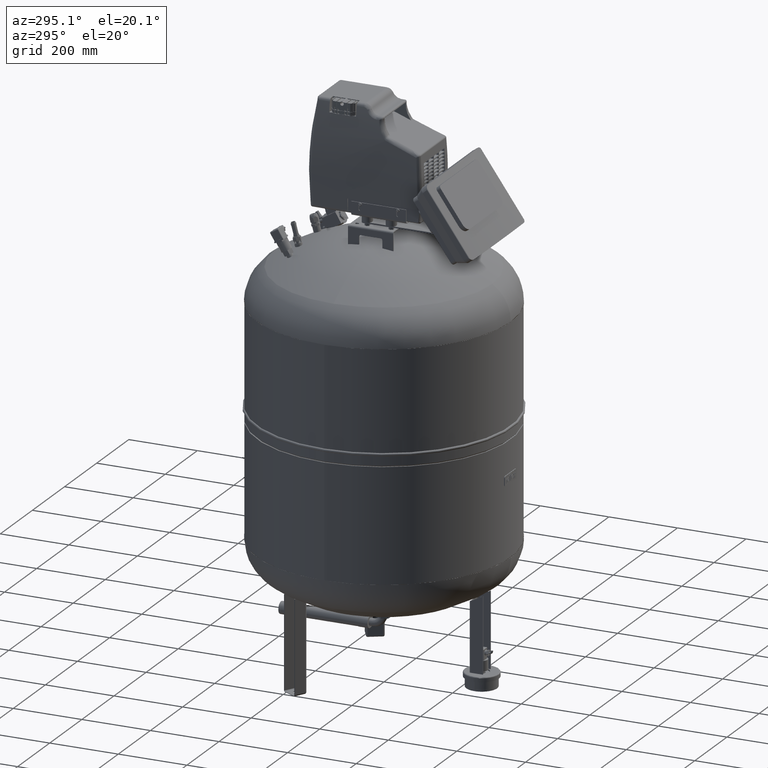
[diagram: clean part render]
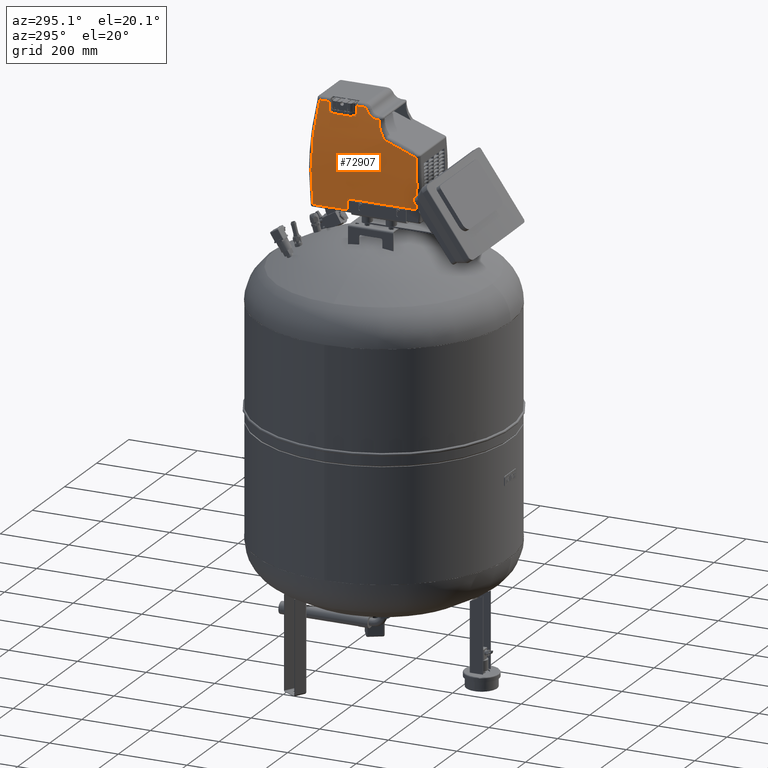
[diagram: same view with one face highlighted and labeled with its STEP entity id]
A machine part, auxiliary view. The second image highlights one B-rep face of the part: STEP entity #72907.
In plain terms, the highlighted cylindrical surface (partial cylindrical patch) has radius 1323.98 mm, axis along (-0, -1, 0).
Its self-contained STEP definition (entity closure, byte-faithful):
#72464=CARTESIAN_POINT('',(-88.601441545151005,64.994999999999919,1348.9999999999768));
#72465=VERTEX_POINT('',#72464);
#72466=CARTESIAN_POINT('',(-88.601441545151431,-136.8903313762531,1348.9999999999768));
#72467=VERTEX_POINT('',#72466);
#72468=CARTESIAN_POINT('',(-88.60144154515099,64.994999999999919,1348.9999999999768));
#72469=DIRECTION('',(0.0,-1.0,0.0));
#72470=VECTOR('',#72469,201.88533137625302);
#72471=LINE('',#72468,#72470);
#72472=EDGE_CURVE('',#72465,#72467,#72471,.T.);
#72567=CARTESIAN_POINT('',(-86.691151156861679,64.994999999999919,1316.2934525354474));
#72568=VERTEX_POINT('',#72567);
#72569=CARTESIAN_POINT('',(1233.9793513775155,64.994999999999692,1409.8388779159684));
#72570=DIRECTION('',(1.791997E-016,1.0,-2.838878E-017));
#72571=DIRECTION('',(0.987682942333179,-1.814344E-016,-0.156468544519573));
#72572=AXIS2_PLACEMENT_3D('',#72569,#72570,#72571);
#72573=CIRCLE('',#72572,1323.9793513775155);
#72574=EDGE_CURVE('',#72568,#72465,#72573,.T.);
#72717=CARTESIAN_POINT('',(1233.9793513775155,15.999999999999687,1409.8388779159684));
#72718=DIRECTION('',(-1.836970E-016,-1.0,0.0));
#72719=DIRECTION('',(0.987682942333179,-1.814344E-016,-0.156468544519573));
#72720=AXIS2_PLACEMENT_3D('',#72717,#72718,#72719);
#72721=CYLINDRICAL_SURFACE('',#72720,1323.9793513775155);
#72722=ORIENTED_EDGE('',*,*,#72574,.T.);
#72723=ORIENTED_EDGE('',*,*,#72472,.T.);
#72724=CARTESIAN_POINT('',(-87.295067870577782,-134.57515547679336,1494.4274818448755));
#72725=VERTEX_POINT('',#72724);
#72726=CARTESIAN_POINT('',(-87.295004678420554,-134.57508892891801,1494.4274579289149));
#72727=CARTESIAN_POINT('',(-87.818475922252105,-135.23896220950346,1486.2507827073723));
#72728=CARTESIAN_POINT('',(-88.266708977992295,-135.81345966165108,1478.0596054801474));
#72729=CARTESIAN_POINT('',(-88.998204002192409,-136.76531933841883,1461.9401926424832));
#72730=CARTESIAN_POINT('',(-89.286669770857458,-137.14884505510949,1454.0126225959871));
#72731=CARTESIAN_POINT('',(-89.851392551042011,-137.92642740395931,1433.3901157820969));
#72732=CARTESIAN_POINT('',(-90.016389170328637,-138.18864127896731,1420.6887107505968));
#72733=CARTESIAN_POINT('',(-89.971335837013811,-138.3055728303635,1388.3292023428253));
#72734=CARTESIAN_POINT('',(-89.505080103293892,-137.85711739995949,1368.6451606004002));
#72735=CARTESIAN_POINT('',(-88.601438893439877,-136.89032866135139,1348.999985807681));
#72736=B_SPLINE_CURVE_WITH_KNOTS('',3,(#72726,#72727,#72728,#72729,#72730,#72731,#72732,#72733,#72734,#72735),.UNSPECIFIED.,.F.,.U.,(4,2,2,2,4),(16.448076188778494,18.893873394847468,21.255607569203402,25.034382248172896,30.88907573413724),.UNSPECIFIED.);
#72737=EDGE_CURVE('',#72725,#72467,#72736,.T.);
#72738=ORIENTED_EDGE('',*,*,#72737,.F.);
#72739=CARTESIAN_POINT('',(-84.858153322599094,-47.366049054652279,1526.4105686062994));
#72740=VERTEX_POINT('',#72739);
#72741=CARTESIAN_POINT('',(1233.9793513775155,-365.22508045633015,1409.8388779159684));
#72742=DIRECTION('',(-3.163426E-016,-0.344315519300506,0.938853994595978));
#72743=DIRECTION('',(7.225804E-017,0.938853994595977,0.344315519300505));
#72744=AXIS2_PLACEMENT_3D('',#72741,#72742,#72743);
#72745=ELLIPSE('',#72744,3845.2502927177002,1323.9793513775155);
#72746=EDGE_CURVE('',#72740,#72725,#72745,.T.);
#72747=ORIENTED_EDGE('',*,*,#72746,.F.);
#72748=CARTESIAN_POINT('',(-84.201942660789143,-37.948665745968441,1533.6104373370545));
#72749=VERTEX_POINT('',#72748);
#72750=CARTESIAN_POINT('',(-84.201942660789143,-37.948665745968441,1533.6104373370545));
#72751=CARTESIAN_POINT('',(-84.255506399702881,-38.354301313573927,1533.0399773783604));
#72752=CARTESIAN_POINT('',(-84.306908327068612,-38.791280778554977,1532.4885458222404));
#72753=CARTESIAN_POINT('',(-84.411625850391204,-39.788274304069404,1531.3580971892625));
#72754=CARTESIAN_POINT('',(-84.464158949325565,-40.356943093415197,1530.786472579302));
#72755=CARTESIAN_POINT('',(-84.543430963415915,-41.330932074094193,1529.9184669652573));
#72756=CARTESIAN_POINT('',(-84.572458132629521,-41.71750182513037,1529.5992276831321));
#72757=CARTESIAN_POINT('',(-84.613700795525858,-42.312718255290378,1529.1439861520003));
#72758=CARTESIAN_POINT('',(-84.627103639361195,-42.514229198658626,1528.99575234545));
#72759=CARTESIAN_POINT('',(-84.661021886897259,-43.045754604063262,1528.6199487551844));
#72760=CARTESIAN_POINT('',(-84.680979367879388,-43.380332299001424,1528.3981464397289));
#72761=CARTESIAN_POINT('',(-84.730368408923624,-44.267492746168358,1527.8478327688267));
#72762=CARTESIAN_POINT('',(-84.758296095045949,-44.830447993232696,1527.5351885263931));
#72763=CARTESIAN_POINT('',(-84.811704980584835,-46.045513335557956,1526.9353034381948));
#72764=CARTESIAN_POINT('',(-84.83658230804005,-46.700607027508426,1526.6546129608628));
#72765=CARTESIAN_POINT('',(-84.858153322599094,-47.366049054652279,1526.4105686062994));
#72766=B_SPLINE_CURVE_WITH_KNOTS('',3,(#72750,#72751,#72752,#72753,#72754,#72755,#72756,#72757,#72758,#72759,#72760,#72761,#72762,#72763,#72764,#72765),.UNSPECIFIED.,.F.,.U.,(4,2,2,2,2,2,2,4),(0.0,0.209548096253904,0.449031634829794,0.598708846439725,0.673547452244691,0.793289221532636,0.984876052393348,1.197417692879451),.UNSPECIFIED.);
#72767=EDGE_CURVE('',#72749,#72740,#72766,.T.);
#72768=ORIENTED_EDGE('',*,*,#72767,.F.);
#72769=CARTESIAN_POINT('',(-78.991967721079732,-22.870510156186441,1580.2138705015054));
#72770=VERTEX_POINT('',#72769);
#72771=CARTESIAN_POINT('',(-78.992793331857627,-22.873994301568331,1580.1978222117255));
#72772=CARTESIAN_POINT('',(-79.362265556209366,-22.897104733805548,1577.3549854110133));
#72773=CARTESIAN_POINT('',(-79.722527472936406,-23.068415062732669,1574.5107836858883));
#72774=CARTESIAN_POINT('',(-81.106263742350478,-24.344136726697883,1563.2756301882168));
#72775=CARTESIAN_POINT('',(-82.032073920329793,-26.588550952880354,1555.0825825462198));
#72776=CARTESIAN_POINT('',(-83.34462682710091,-32.249917184423197,1542.5132358340952));
#72777=CARTESIAN_POINT('',(-83.799851100099886,-34.903646078609285,1537.8927585445301));
#72778=CARTESIAN_POINT('',(-84.201942660789143,-37.948665745968441,1533.6104373370545));
#72779=B_SPLINE_CURVE_WITH_KNOTS('',3,(#72771,#72772,#72773,#72774,#72775,#72776,#72777,#72778),.UNSPECIFIED.,.F.,.U.,(4,2,2,4),(7.646276030515495,8.494377408355071,11.011229973793611,12.584262827192699),.UNSPECIFIED.);
#72780=EDGE_CURVE('',#72770,#72749,#72779,.T.);
#72781=ORIENTED_EDGE('',*,*,#72780,.F.);
#72782=CARTESIAN_POINT('',(-78.991967721079618,-17.703577952971585,1580.2138705015072));
#72783=VERTEX_POINT('',#72782);
#72784=CARTESIAN_POINT('',(-78.991967721079618,-17.703577952971585,1580.2138705015072));
#72785=DIRECTION('',(0.0,-1.0,0.0));
#72786=VECTOR('',#72785,5.166932203214856);
#72787=LINE('',#72784,#72786);
#72788=EDGE_CURVE('',#72783,#72770,#72787,.T.);
#72789=ORIENTED_EDGE('',*,*,#72788,.F.);
#72790=CARTESIAN_POINT('',(-75.968142067331769,14.062405185042877,1602.0858214328646));
#72791=VERTEX_POINT('',#72790);
#72792=CARTESIAN_POINT('',(-75.968142067331769,14.062405185042877,1602.0858214328646));
#72793=CARTESIAN_POINT('',(-76.627627675005016,12.322934472708226,1597.5921660179552));
#72794=CARTESIAN_POINT('',(-77.211972479466027,9.610946153562196,1593.4427406644668));
#72795=CARTESIAN_POINT('',(-78.098853850010073,3.082085378054131,1586.987538957922));
#72796=CARTESIAN_POINT('',(-78.431694229848802,-0.672419709186755,1584.4854285094625));
#72797=CARTESIAN_POINT('',(-78.789935500835327,-7.209419508391051,1581.7668703011159));
#72798=CARTESIAN_POINT('',(-78.887567402136568,-9.876616068560537,1581.0170057703158));
#72799=CARTESIAN_POINT('',(-78.975246321584819,-14.288769859893677,1580.3428826114362));
#72800=CARTESIAN_POINT('',(-78.991967721079334,-16.002352876463732,1580.2138705015072));
#72801=CARTESIAN_POINT('',(-78.991967721079334,-17.703577952971585,1580.2138705015072));
#72802=B_SPLINE_CURVE_WITH_KNOTS('',3,(#72792,#72793,#72794,#72795,#72796,#72797,#72798,#72799,#72800,#72801),.UNSPECIFIED.,.F.,.U.,(4,2,2,2,4),(0.0,1.449443765184828,2.755984623942982,3.572572660666828,4.082940183619233),.UNSPECIFIED.);
#72803=EDGE_CURVE('',#72791,#72783,#72802,.T.);
#72804=ORIENTED_EDGE('',*,*,#72803,.F.);
#72805=CARTESIAN_POINT('',(-75.010674275463373,23.378822094593176,1608.5004887396003));
#72806=VERTEX_POINT('',#72805);
#72807=CARTESIAN_POINT('',(-75.010674275463373,23.378822094593176,1608.5004887396003));
#72808=CARTESIAN_POINT('',(-75.010674275463373,21.961332089716535,1608.5004887396003));
#72809=CARTESIAN_POINT('',(-75.05784819114109,20.538549799428012,1608.1903038022951));
#72810=CARTESIAN_POINT('',(-75.227099544842673,18.086478779098258,1607.0699107049165));
#72811=CARTESIAN_POINT('',(-75.343263700974688,17.011562762069303,1606.298777002572));
#72812=CARTESIAN_POINT('',(-75.568320320881554,15.587829883525302,1604.7915951350287));
#72813=CARTESIAN_POINT('',(-75.665303192862751,15.104231348763989,1604.1394188558118));
#72814=CARTESIAN_POINT('',(-75.833086826149128,14.457538956940112,1603.0043364195781));
#72815=CARTESIAN_POINT('',(-75.900013874095663,14.242101292796661,1602.5500387271945));
#72816=CARTESIAN_POINT('',(-75.968142067331769,14.062405185042877,1602.0858214328646));
#72817=B_SPLINE_CURVE_WITH_KNOTS('',3,(#72807,#72808,#72809,#72810,#72811,#72812,#72813,#72814,#72815,#72816),.UNSPECIFIED.,.F.,.U.,(4,2,2,2,4),(0.0,0.425247001463004,0.808568242218388,1.048144017690503,1.197878877360575),.UNSPECIFIED.);
#72818=EDGE_CURVE('',#72806,#72791,#72817,.T.);
#72819=ORIENTED_EDGE('',*,*,#72818,.F.);
#72820=CARTESIAN_POINT('',(-75.010674275463373,44.69538403177333,1608.5004887396003));
#72821=VERTEX_POINT('',#72820);
#72822=CARTESIAN_POINT('',(-75.010674275463373,44.69538403177333,1608.5004887396003));
#72823=DIRECTION('',(0.0,-1.0,0.0));
#72824=VECTOR('',#72823,21.316561937180154);
#72825=LINE('',#72822,#72824);
#72826=EDGE_CURVE('',#72821,#72806,#72825,.T.);
#72827=ORIENTED_EDGE('',*,*,#72826,.F.);
#72828=CARTESIAN_POINT('',(-79.019702470253947,44.69538403177333,1579.9999999999768));
#72829=VERTEX_POINT('',#72828);
#72830=CARTESIAN_POINT('',(1233.9793513775155,44.695384031773102,1409.8388779159684));
#72831=DIRECTION('',(-1.791997E-016,-1.0,2.838878E-017));
#72832=DIRECTION('',(0.987682942333179,-1.814344E-016,-0.156468544519573));
#72833=AXIS2_PLACEMENT_3D('',#72830,#72831,#72832);
#72834=CIRCLE('',#72833,1323.9793513775155);
#72835=EDGE_CURVE('',#72821,#72829,#72834,.T.);
#72836=ORIENTED_EDGE('',*,*,#72835,.T.);
#72837=CARTESIAN_POINT('',(-79.019702470253947,53.044746320477799,1579.9999999999768));
#72838=VERTEX_POINT('',#72837);
#72839=CARTESIAN_POINT('',(-79.019702470253947,44.69538403177333,1579.9999999999768));
#72840=DIRECTION('',(0.0,1.0,0.0));
#72841=VECTOR('',#72840,8.349362288704469);
#72842=LINE('',#72839,#72841);
#72843=EDGE_CURVE('',#72829,#72838,#72842,.T.);
#72844=ORIENTED_EDGE('',*,*,#72843,.T.);
#72845=CARTESIAN_POINT('',(-79.019702470253947,113.6308377488929,1579.9999999999768));
#72846=VERTEX_POINT('',#72845);
#72847=CARTESIAN_POINT('',(-79.019702470253947,53.044746320477799,1579.9999999999768));
#72848=DIRECTION('',(0.0,1.0,0.0));
#72849=VECTOR('',#72848,60.586091428415102);
#72850=LINE('',#72847,#72849);
#72851=EDGE_CURVE('',#72838,#72846,#72850,.T.);
#72852=ORIENTED_EDGE('',*,*,#72851,.T.);
#72853=CARTESIAN_POINT('',(-79.019702470253947,122.69538403177333,1579.9999999999768));
#72854=VERTEX_POINT('',#72853);
#72855=CARTESIAN_POINT('',(-79.019702470253932,113.6308377488929,1579.9999999999768));
#72856=DIRECTION('',(0.0,1.0,0.0));
#72857=VECTOR('',#72856,9.064546282880428);
#72858=LINE('',#72855,#72857);
#72859=EDGE_CURVE('',#72846,#72854,#72858,.T.);
#72860=ORIENTED_EDGE('',*,*,#72859,.T.);
#72861=CARTESIAN_POINT('',(-75.010674275463373,122.69538403177333,1608.5004887396003));
#72862=VERTEX_POINT('',#72861);
#72863=CARTESIAN_POINT('',(1233.9793513775155,122.6953840317731,1409.8388779159684));
#72864=DIRECTION('',(1.791997E-016,1.0,-2.838878E-017));
#72865=DIRECTION('',(0.987682942333179,-1.814344E-016,-0.156468544519573));
#72866=AXIS2_PLACEMENT_3D('',#72863,#72864,#72865);
#72867=CIRCLE('',#72866,1323.9793513775155);
#72868=EDGE_CURVE('',#72854,#72862,#72867,.T.);
#72869=ORIENTED_EDGE('',*,*,#72868,.T.);
#72870=CARTESIAN_POINT('',(-75.010674275463515,152.69538403177333,1608.5004887396003));
#72871=VERTEX_POINT('',#72870);
#72872=CARTESIAN_POINT('',(-75.010674275463344,152.69538403177333,1608.5004887396003));
#72873=DIRECTION('',(0.0,-1.0,0.0));
#72874=VECTOR('',#72873,30.0);
#72875=LINE('',#72872,#72874);
#72876=EDGE_CURVE('',#72871,#72862,#72875,.T.);
#72877=ORIENTED_EDGE('',*,*,#72876,.F.);
#72878=CARTESIAN_POINT('',(-86.691151156861594,166.84002823482652,1316.2934525354474));
#72879=VERTEX_POINT('',#72878);
#72880=CARTESIAN_POINT('',(-86.690921024887814,166.83978611158912,1316.2935862402824));
#72881=CARTESIAN_POINT('',(-87.392225955536503,167.66198511374287,1326.1941705871711));
#72882=CARTESIAN_POINT('',(-87.983497528188906,168.35345195870971,1336.1191772019617));
#72883=CARTESIAN_POINT('',(-89.685173591937883,170.33707751054297,1371.4029641705015));
#72884=CARTESIAN_POINT('',(-90.179741823236327,170.89918133139898,1396.8466570335981));
#72885=CARTESIAN_POINT('',(-89.793312519190209,170.40371333521401,1438.107659365716));
#72886=CARTESIAN_POINT('',(-89.359745235905677,169.87576388221501,1453.9452538492351));
#72887=CARTESIAN_POINT('',(-88.285576615565617,168.58132446851678,1477.6576556318041));
#72888=CARTESIAN_POINT('',(-87.8566148702281,168.06576013794259,1485.5592841294078));
#72889=CARTESIAN_POINT('',(-86.557668825257963,166.50723805844692,1506.0859695269714));
#72890=CARTESIAN_POINT('',(-85.577413997729508,165.33336001047101,1518.7004996872743));
#72891=CARTESIAN_POINT('',(-82.564709489741148,161.72870123730323,1551.4072396775287));
#72892=CARTESIAN_POINT('',(-80.253320090755494,158.9658319647489,1571.4445953166592));
#72893=CARTESIAN_POINT('',(-76.70856492633547,154.72648009659272,1597.0609312336487));
#72894=CARTESIAN_POINT('',(-75.877528890152831,153.73248277715166,1602.7882282700562));
#72895=CARTESIAN_POINT('',(-75.010552502997825,152.69525575481239,1608.5003843480631));
#72896=B_SPLINE_CURVE_WITH_KNOTS('',3,(#72880,#72881,#72882,#72883,#72884,#72885,#72886,#72887,#72888,#72889,#72890,#72891,#72892,#72893,#72894,#72895),.UNSPECIFIED.,.F.,.U.,(4,2,2,2,2,2,2,4),(3.643019177170405,6.602943945548757,14.149165597604481,18.865554130139309,21.223748396406723,24.996859222434587,31.033836544079168,32.777557216978373),.UNSPECIFIED.);
#72897=EDGE_CURVE('',#72879,#72871,#72896,.T.);
#72898=ORIENTED_EDGE('',*,*,#72897,.F.);
#72899=CARTESIAN_POINT('',(-86.691151156861665,64.994999999999919,1316.2934525354474));
#72900=DIRECTION('',(0.0,1.0,0.0));
#72901=VECTOR('',#72900,101.8450282348266);
#72902=LINE('',#72899,#72901);
#72903=EDGE_CURVE('',#72568,#72879,#72902,.T.);
#72904=ORIENTED_EDGE('',*,*,#72903,.F.);
#72905=EDGE_LOOP('',(#72722,#72723,#72738,#72747,#72768,#72781,#72789,#72804,#72819,#72827,#72836,#72844,#72852,#72860,#72869,#72877,#72898,#72904));
#72906=FACE_OUTER_BOUND('',#72905,.T.);
#72907=ADVANCED_FACE('',(#72906),#72721,.T.);